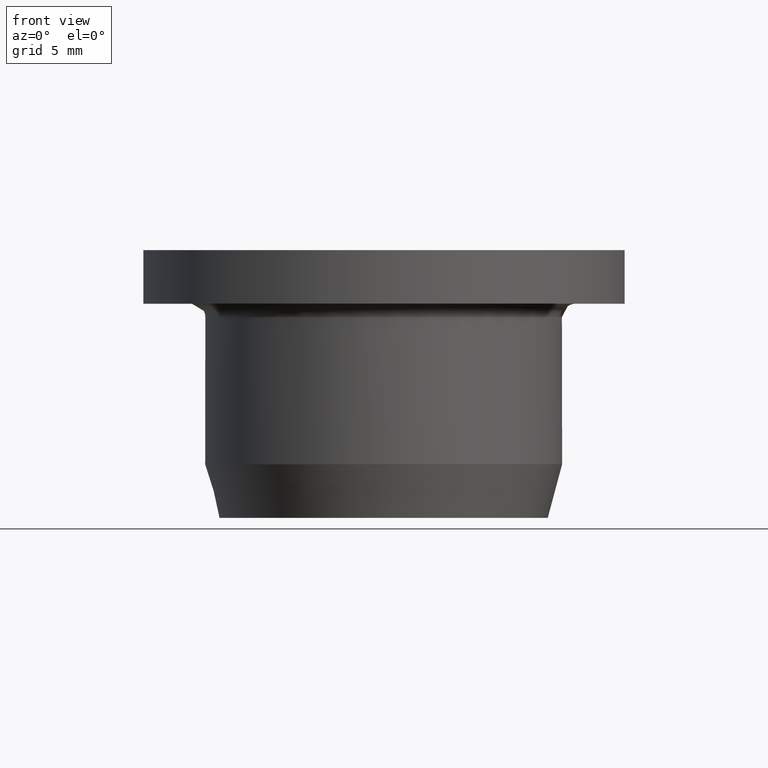
[diagram: clean part render]
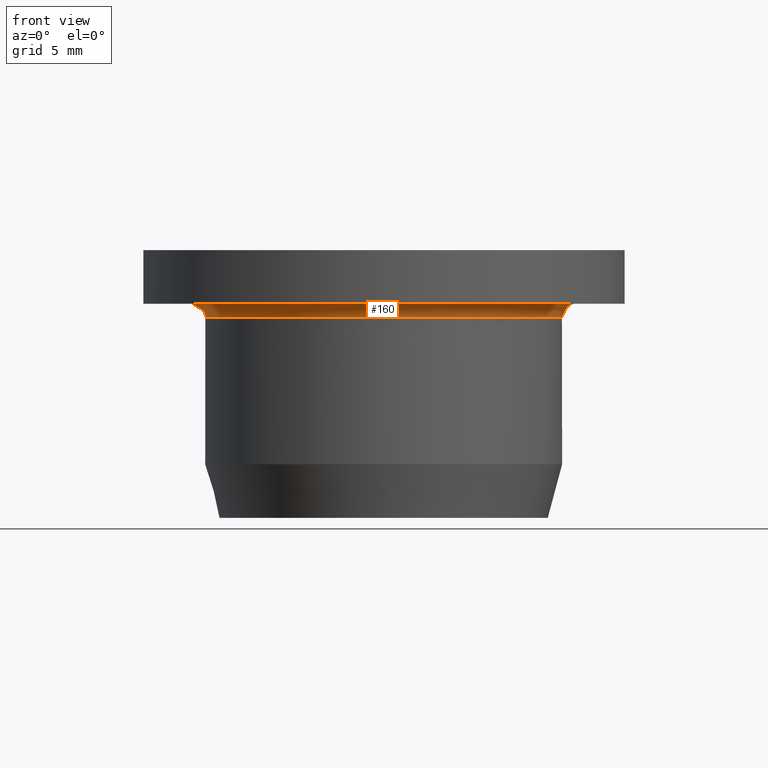
[diagram: same view with one face highlighted and labeled with its STEP entity id]
A machine part, front view. The second image highlights one B-rep face of the part: STEP entity #160.
In plain terms, the highlighted toroidal blend (fillet) surface has major radius 10.75 mm and minor (blend) radius 0.75 mm.
Its self-contained STEP definition (entity closure, byte-faithful):
#160=ADVANCED_FACE('',(#185,#186),#187,.F.);
#185=FACE_OUTER_BOUND('',#213,.T.);
#186=FACE_OUTER_BOUND('',#214,.T.);
#187=TOROIDAL_SURFACE('',#215,0.01075,0.00075);
#213=EDGE_LOOP('',(#254));
#214=EDGE_LOOP('',(#255));
#215=AXIS2_PLACEMENT_3D('',#256,#257,#258);
#254=ORIENTED_EDGE('',*,*,#268,.F.);
#255=ORIENTED_EDGE('',*,*,#266,.F.);
#256=CARTESIAN_POINT('',(0.0,6.88863824520386E-019,0.01125));
#257=DIRECTION('',(0.0,-6.12323399573677E-017,-1.0));
#258=DIRECTION('',(0.0,1.0,-6.12323399573677E-017));
#266=EDGE_CURVE('',#277,#277,#278,.T.);
#268=EDGE_CURVE('',#281,#281,#282,.F.);
#277=VERTEX_POINT('',#295);
#278=CIRCLE('',#296,0.01);
#281=VERTEX_POINT('',#299);
#282=CIRCLE('',#300,0.01075);
#295=CARTESIAN_POINT('',(0.0,0.01,0.01125));
#296=AXIS2_PLACEMENT_3D('',#315,#316,#317);
#299=CARTESIAN_POINT('',(0.0,0.01075,0.012));
#300=AXIS2_PLACEMENT_3D('',#321,#322,#323);
#315=CARTESIAN_POINT('',(0.0,6.88863824520386E-019,0.01125));
#316=DIRECTION('',(0.0,-6.12323399573677E-017,-1.0));
#317=DIRECTION('',(0.0,1.0,-6.12323399573677E-017));
#321=CARTESIAN_POINT('',(0.0,7.34788079488412E-019,0.012));
#322=DIRECTION('',(0.0,-6.12323399573677E-017,-1.0));
#323=DIRECTION('',(0.0,1.0,-6.12323399573677E-017));